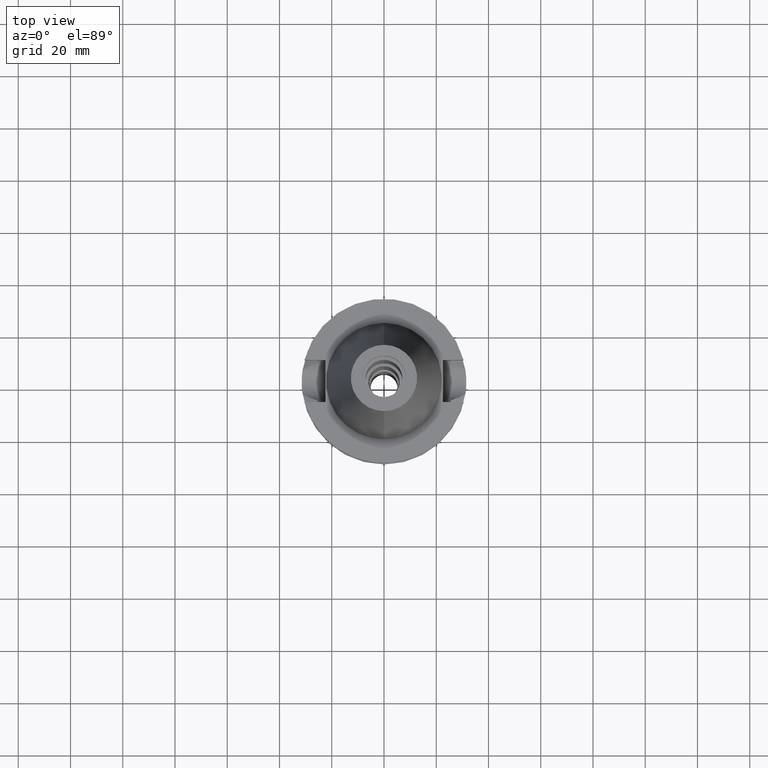
[diagram: clean part render]
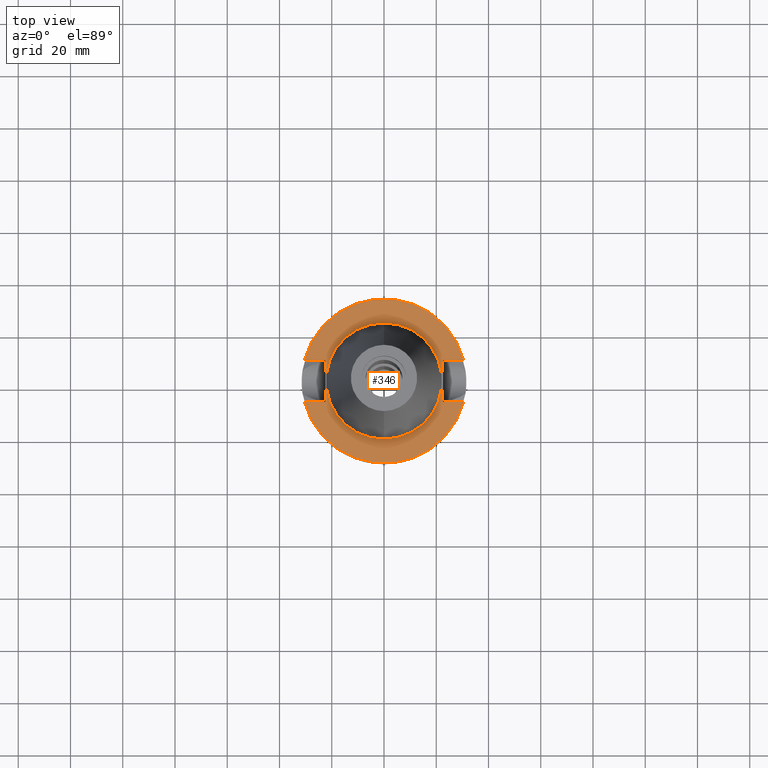
[diagram: same view with one face highlighted and labeled with its STEP entity id]
A machine part, top view. The second image highlights one B-rep face of the part: STEP entity #346.
In plain terms, the highlighted planar face has unit normal (0, 0, -1).
Its self-contained STEP definition (entity closure, byte-faithful):
#64 = DIRECTION ( 'NONE',  ( 0.0000000000000000000, 0.0000000000000000000, -1.000000000000000000 ) ) ;
#75 = DIRECTION ( 'NONE',  ( 0.0000000000000000000, -1.000000000000000000, 0.0000000000000000000 ) ) ;
#78 = VECTOR ( 'NONE', #3325, 1000.000000000000000 ) ;
#83 = CARTESIAN_POINT ( 'NONE',  ( 22.50000000000000000, -8.050000000000000711, -2.000000000000000000 ) ) ;
#84 = DIRECTION ( 'NONE',  ( 1.000000000000000000, 3.573249715389999860E-14, 0.0000000000000000000 ) ) ;
#103 = DIRECTION ( 'NONE',  ( 0.0000000000000000000, 0.0000000000000000000, -1.000000000000000000 ) ) ;
#137 = LINE ( 'NONE', #994, #767 ) ;
#162 = ORIENTED_EDGE ( 'NONE', *, *, #522, .F. ) ;
#239 = DIRECTION ( 'NONE',  ( 0.0000000000000000000, -1.000000000000000000, 0.0000000000000000000 ) ) ;
#346 = ADVANCED_FACE ( 'NONE', ( #354, #1460 ), #1145, .F. ) ;
#354 = FACE_OUTER_BOUND ( 'NONE', #1361, .T. ) ;
#471 = AXIS2_PLACEMENT_3D ( 'NONE', #2114, #103, #3231 ) ;
#522 = EDGE_CURVE ( 'NONE', #2395, #1019, #1369, .T. ) ;
#568 = VERTEX_POINT ( 'NONE', #83 ) ;
#570 = CARTESIAN_POINT ( 'NONE',  ( 0.0000000000000000000, 1.200153863163999924E-14, -2.000000000000000000 ) ) ;
#611 = ORIENTED_EDGE ( 'NONE', *, *, #734, .F. ) ;
#638 = DIRECTION ( 'NONE',  ( 0.0000000000000000000, 0.0000000000000000000, 1.000000000000000000 ) ) ;
#663 = CARTESIAN_POINT ( 'NONE',  ( 30.45402272279000044, 8.050000000000000711, -2.000000000000000000 ) ) ;
#665 = ORIENTED_EDGE ( 'NONE', *, *, #1197, .T. ) ;
#712 = DIRECTION ( 'NONE',  ( 0.0000000000000000000, 1.000000000000000000, 0.0000000000000000000 ) ) ;
#732 = CARTESIAN_POINT ( 'NONE',  ( 30.45402272279000044, -8.050000000000000711, -2.000000000000000000 ) ) ;
#734 = EDGE_CURVE ( 'NONE', #3252, #3470, #3557, .T. ) ;
#767 = VECTOR ( 'NONE', #84, 1000.000000000000000 ) ;
#872 = VERTEX_POINT ( 'NONE', #2647 ) ;
#980 = EDGE_CURVE ( 'NONE', #2822, #3504, #2472, .T. ) ;
#994 = CARTESIAN_POINT ( 'NONE',  ( 22.50000000000000000, -8.050000000000000711, -2.000000000000000000 ) ) ;
#1019 = VERTEX_POINT ( 'NONE', #663 ) ;
#1032 = CIRCLE ( 'NONE', #3069, 22.22500000000000142 ) ;
#1074 = VERTEX_POINT ( 'NONE', #732 ) ;
#1084 = DIRECTION ( 'NONE',  ( 0.0000000000000000000, 1.000000000000000000, 0.0000000000000000000 ) ) ;
#1145 = PLANE ( 'NONE',  #1366 ) ;
#1197 = EDGE_CURVE ( 'NONE', #3252, #2717, #2202, .T. ) ;
#1207 = EDGE_CURVE ( 'NONE', #3504, #2822, #1032, .T. ) ;
#1235 = DIRECTION ( 'NONE',  ( 0.0000000000000000000, 0.0000000000000000000, -1.000000000000000000 ) ) ;
#1297 = ORIENTED_EDGE ( 'NONE', *, *, #2774, .F. ) ;
#1360 = LINE ( 'NONE', #3265, #2934 ) ;
#1361 = EDGE_LOOP ( 'NONE', ( #665, #2765, #1579, #1297, #2435, #162, #3048, #611 ) ) ;
#1366 = AXIS2_PLACEMENT_3D ( 'NONE', #570, #64, #2263 ) ;
#1369 = CIRCLE ( 'NONE', #2240, 31.50000000000000000 ) ;
#1437 = EDGE_CURVE ( 'NONE', #1074, #2717, #2512, .T. ) ;
#1460 = FACE_BOUND ( 'NONE', #3180, .T. ) ;
#1472 = LINE ( 'NONE', #2550, #1694 ) ;
#1481 = EDGE_CURVE ( 'NONE', #3470, #2395, #1360, .T. ) ;
#1515 = CARTESIAN_POINT ( 'NONE',  ( 0.0000000000000000000, 2.183790172239999946E-14, -2.000000000000000000 ) ) ;
#1564 = ORIENTED_EDGE ( 'NONE', *, *, #1207, .F. ) ;
#1579 = ORIENTED_EDGE ( 'NONE', *, *, #1828, .F. ) ;
#1694 = VECTOR ( 'NONE', #75, 1000.000000000000000 ) ;
#1725 = AXIS2_PLACEMENT_3D ( 'NONE', #3455, #638, #712 ) ;
#1732 = CARTESIAN_POINT ( 'NONE',  ( -30.45402272279000044, -8.050000000000000711, -2.000000000000000000 ) ) ;
#1826 = CARTESIAN_POINT ( 'NONE',  ( 0.0000000000000000000, 22.22500000000000142, -2.000000000000000000 ) ) ;
#1828 = EDGE_CURVE ( 'NONE', #568, #1074, #137, .T. ) ;
#2051 = LINE ( 'NONE', #3167, #2061 ) ;
#2061 = VECTOR ( 'NONE', #3457, 1000.000000000000000 ) ;
#2075 = CARTESIAN_POINT ( 'NONE',  ( -30.45402272279000044, 8.050000000000000711, -2.000000000000000000 ) ) ;
#2114 = CARTESIAN_POINT ( 'NONE',  ( 0.0000000000000000000, 2.183790172239999946E-14, -2.000000000000000000 ) ) ;
#2202 = LINE ( 'NONE', #2488, #78 ) ;
#2236 = EDGE_CURVE ( 'NONE', #872, #1019, #2051, .T. ) ;
#2240 = AXIS2_PLACEMENT_3D ( 'NONE', #1515, #1235, #2673 ) ;
#2263 = DIRECTION ( 'NONE',  ( 0.0000000000000000000, -1.000000000000000000, 0.0000000000000000000 ) ) ;
#2297 = VECTOR ( 'NONE', #1084, 1000.000000000000000 ) ;
#2395 = VERTEX_POINT ( 'NONE', #2075 ) ;
#2432 = DIRECTION ( 'NONE',  ( -1.000000000000000000, -3.550916904668000126E-14, 0.0000000000000000000 ) ) ;
#2435 = ORIENTED_EDGE ( 'NONE', *, *, #2236, .T. ) ;
#2472 = CIRCLE ( 'NONE', #1725, 22.22500000000000142 ) ;
#2488 = CARTESIAN_POINT ( 'NONE',  ( -22.50000000000000000, -8.050000000000000711, -2.000000000000000000 ) ) ;
#2512 = CIRCLE ( 'NONE', #471, 31.50000000000000000 ) ;
#2547 = CARTESIAN_POINT ( 'NONE',  ( -22.50000000000000000, -8.050000000000000711, -2.000000000000000000 ) ) ;
#2550 = CARTESIAN_POINT ( 'NONE',  ( 22.50000000000000000, 8.050000000000000711, -2.000000000000000000 ) ) ;
#2647 = CARTESIAN_POINT ( 'NONE',  ( 22.50000000000000000, 8.050000000000000711, -2.000000000000000000 ) ) ;
#2673 = DIRECTION ( 'NONE',  ( 0.0000000000000000000, 1.000000000000000000, 0.0000000000000000000 ) ) ;
#2717 = VERTEX_POINT ( 'NONE', #1732 ) ;
#2765 = ORIENTED_EDGE ( 'NONE', *, *, #1437, .F. ) ;
#2774 = EDGE_CURVE ( 'NONE', #872, #568, #1472, .T. ) ;
#2822 = VERTEX_POINT ( 'NONE', #1826 ) ;
#2934 = VECTOR ( 'NONE', #2432, 1000.000000000000000 ) ;
#2987 = ORIENTED_EDGE ( 'NONE', *, *, #980, .F. ) ;
#3008 = CARTESIAN_POINT ( 'NONE',  ( -22.50000000000000000, -8.050000000000000711, -2.000000000000000000 ) ) ;
#3048 = ORIENTED_EDGE ( 'NONE', *, *, #1481, .F. ) ;
#3069 = AXIS2_PLACEMENT_3D ( 'NONE', #3380, #3070, #239 ) ;
#3070 = DIRECTION ( 'NONE',  ( 0.0000000000000000000, 0.0000000000000000000, 1.000000000000000000 ) ) ;
#3167 = CARTESIAN_POINT ( 'NONE',  ( 22.50000000000000000, 8.050000000000000711, -2.000000000000000000 ) ) ;
#3180 = EDGE_LOOP ( 'NONE', ( #2987, #1564 ) ) ;
#3231 = DIRECTION ( 'NONE',  ( 0.0000000000000000000, -1.000000000000000000, 0.0000000000000000000 ) ) ;
#3232 = CARTESIAN_POINT ( 'NONE',  ( -22.50000000000000000, 8.050000000000000711, -2.000000000000000000 ) ) ;
#3252 = VERTEX_POINT ( 'NONE', #2547 ) ;
#3265 = CARTESIAN_POINT ( 'NONE',  ( -22.50000000000000000, 8.050000000000000711, -2.000000000000000000 ) ) ;
#3325 = DIRECTION ( 'NONE',  ( -1.000000000000000000, 3.550916904668000126E-14, 0.0000000000000000000 ) ) ;
#3380 = CARTESIAN_POINT ( 'NONE',  ( 0.0000000000000000000, 2.183790172239999946E-14, -2.000000000000000000 ) ) ;
#3446 = CARTESIAN_POINT ( 'NONE',  ( 0.0000000000000000000, -22.22500000000000142, -2.000000000000000000 ) ) ;
#3455 = CARTESIAN_POINT ( 'NONE',  ( 0.0000000000000000000, 2.183790172239999946E-14, -2.000000000000000000 ) ) ;
#3457 = DIRECTION ( 'NONE',  ( 1.000000000000000000, -3.506251283225999947E-14, 0.0000000000000000000 ) ) ;
#3470 = VERTEX_POINT ( 'NONE', #3232 ) ;
#3504 = VERTEX_POINT ( 'NONE', #3446 ) ;
#3557 = LINE ( 'NONE', #3008, #2297 ) ;